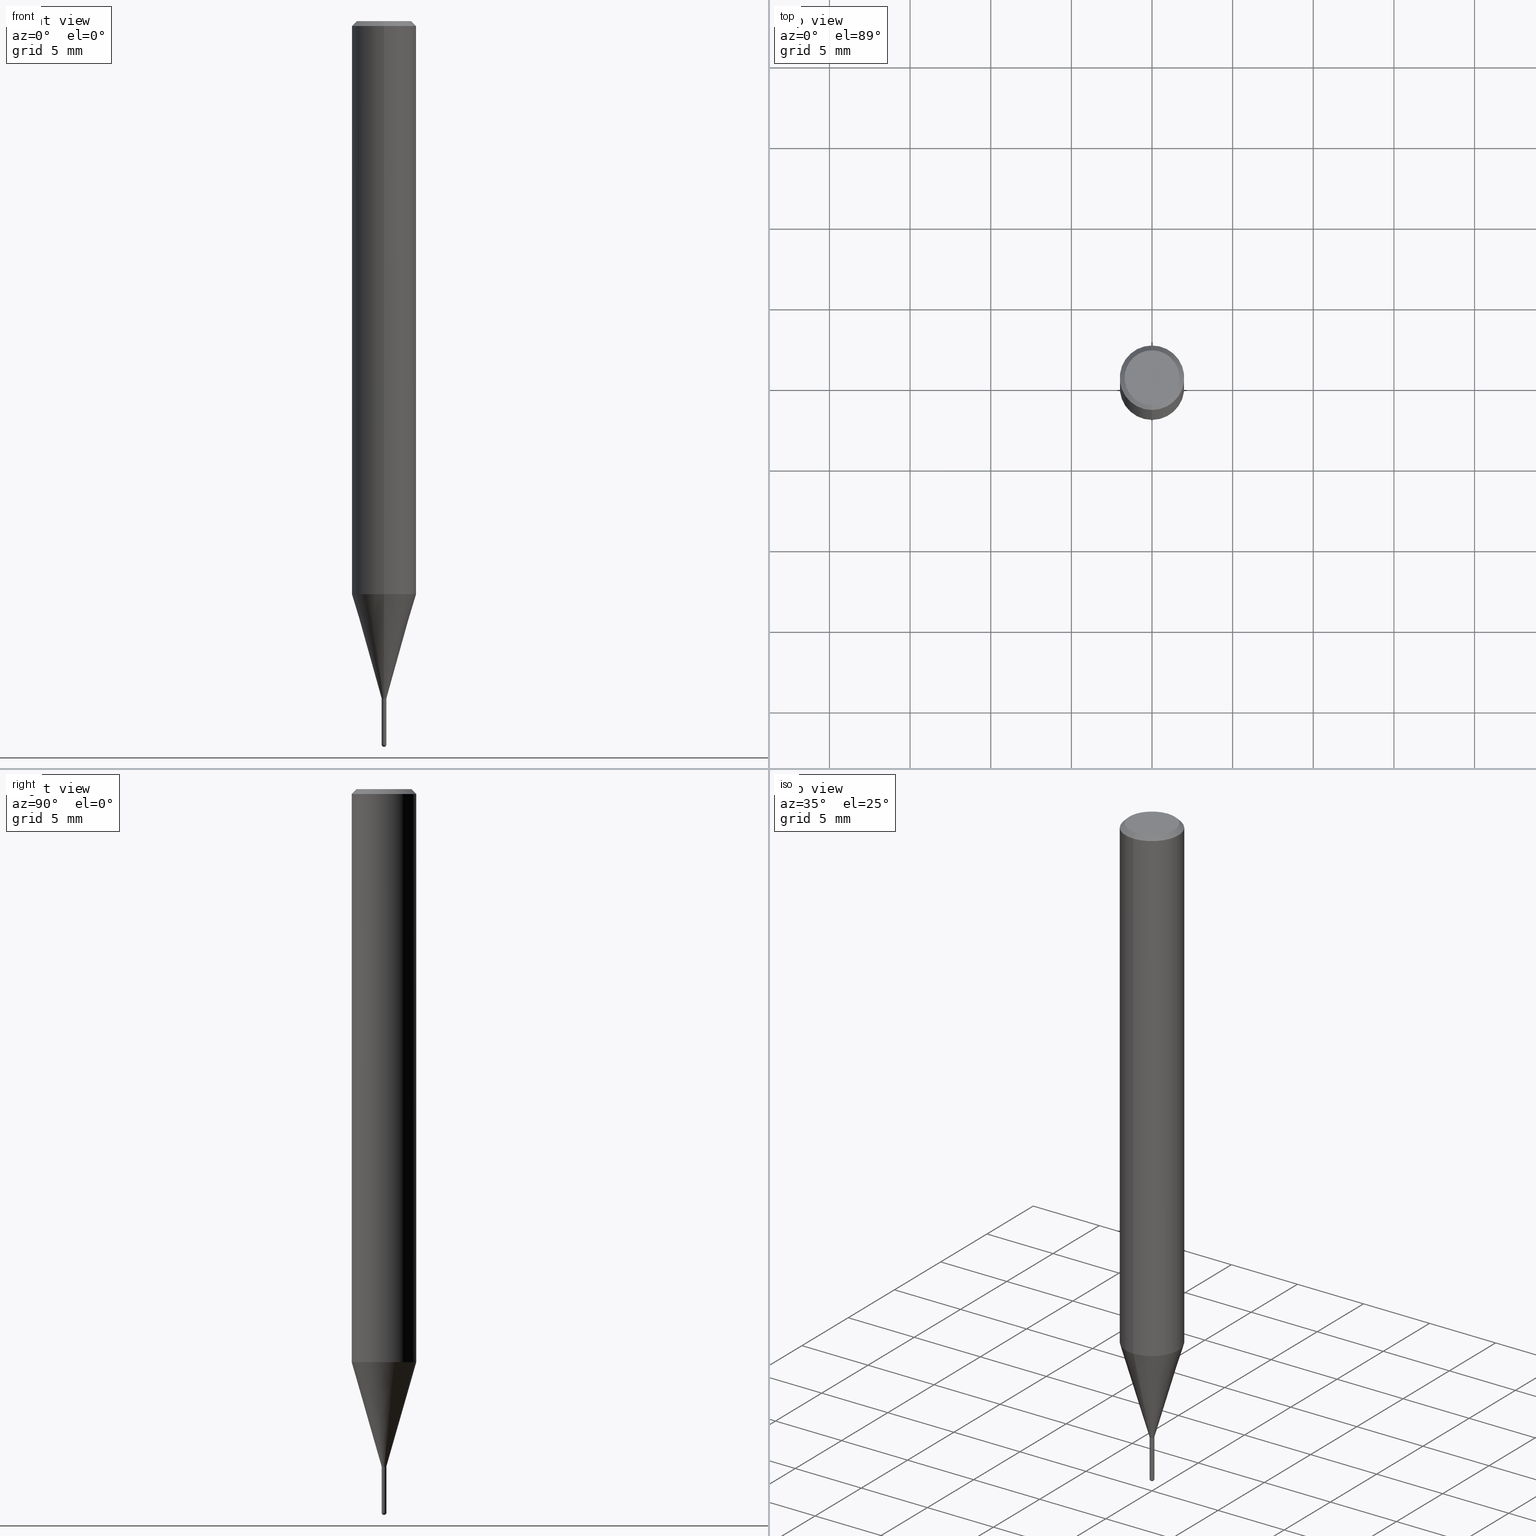
[diagram: canonical four-view strip — front | top / right | iso, engineering-drawing reading convention]
A machine part, canonical four-view strip (front | top / right | iso — engineering-drawing reading convention). The complete STEP part file that produces these views, byte-faithful:
ISO-10303-21;
HEADER;
FILE_DESCRIPTION(('no description'),'unknown implementation level');
FILE_NAME('HSLB2003-030-Huellk.stp','  ',('CIMSOURCE GmbH'),('CADClick - KiM GmbH - www.kimweb.de'),'unknown preprocess','ACIS','unknown authorization');
FILE_SCHEMA(('automotive_design'));
ENDSEC;
DATA;
#1=MECHANICAL_DESIGN_GEOMETRIC_PRESENTATION_REPRESENTATION(' ',(#14,#15,#16,#17,#18,#19,#20,#21,#22,#23,#24,#25,#26,#27,#28,#29,#30,#31,#32,#33,#34,#35,#36,#37,#38,#39,#40,#41,#42,#43,#44,#45,#46,#47,#48,#49,#50,#51,#52,#53,#54,#55,#56,#57,#58,#59,#60,#61,#62,#63,#64,#65,#66,#67,#68,#69,#70,#71,#72,#73,#74),#10);
#2=PRODUCT_DEFINITION_CONTEXT('',#75,'design');
#3=APPLICATION_PROTOCOL_DEFINITION('INTERNATIONAL STANDARD','automotive_design',1994,#75);
#4=PRODUCT_CATEGORY_RELATIONSHIP('NONE','NONE',#76,#77);
#5=SHAPE_DEFINITION_REPRESENTATION(#78,#79);
#6=PRODUCT_DEFINITION_CONTEXT('',#80,'design');
#7=APPLICATION_PROTOCOL_DEFINITION('INTERNATIONAL STANDARD','automotive_design',1994,#80);
#8=PRODUCT_CATEGORY_RELATIONSHIP('NONE','NONE',#81,#82);
#9=SHAPE_DEFINITION_REPRESENTATION(#83,#84);
#10= (GEOMETRIC_REPRESENTATION_CONTEXT(3)GLOBAL_UNCERTAINTY_ASSIGNED_CONTEXT((#87))GLOBAL_UNIT_ASSIGNED_CONTEXT((#89,#90,#91))REPRESENTATION_CONTEXT('NONE','WORKSPACE'));
#14=STYLED_ITEM('',(#93),#94);
#15=STYLED_ITEM('',(#95),#96);
#16=STYLED_ITEM('',(#97),#98);
#17=STYLED_ITEM('',(#99),#100);
#18=STYLED_ITEM('',(#101),#102);
#19=STYLED_ITEM('',(#103),#104);
#20=STYLED_ITEM('',(#105),#106);
#21=STYLED_ITEM('',(#107),#108);
#22=STYLED_ITEM('',(#109),#110);
#23=STYLED_ITEM('',(#111),#112);
#24=STYLED_ITEM('',(#113),#114);
#25=STYLED_ITEM('',(#115),#116);
#26=STYLED_ITEM('',(#117),#118);
#27=STYLED_ITEM('',(#119),#120);
#28=STYLED_ITEM('',(#121),#122);
#29=STYLED_ITEM('',(#123),#124);
#30=STYLED_ITEM('',(#125),#126);
#31=STYLED_ITEM('',(#127),#128);
#32=STYLED_ITEM('',(#129),#130);
#33=STYLED_ITEM('',(#131),#132);
#34=STYLED_ITEM('',(#133),#134);
#35=STYLED_ITEM('',(#135),#136);
#36=STYLED_ITEM('',(#137),#138);
#37=STYLED_ITEM('',(#139),#140);
#38=STYLED_ITEM('',(#141),#142);
#39=STYLED_ITEM('',(#143),#144);
#40=STYLED_ITEM('',(#145),#146);
#41=STYLED_ITEM('',(#147),#148);
#42=STYLED_ITEM('',(#149),#150);
#43=STYLED_ITEM('',(#151),#152);
#44=STYLED_ITEM('',(#153),#154);
#45=STYLED_ITEM('',(#155),#156);
#46=STYLED_ITEM('',(#157),#158);
#47=STYLED_ITEM('',(#159),#160);
#48=STYLED_ITEM('',(#161),#162);
#49=STYLED_ITEM('',(#163),#164);
#50=STYLED_ITEM('',(#165),#166);
#51=STYLED_ITEM('',(#167),#168);
#52=STYLED_ITEM('',(#169),#170);
#53=STYLED_ITEM('',(#171),#172);
#54=STYLED_ITEM('',(#173),#174);
#55=STYLED_ITEM('',(#175),#176);
#56=STYLED_ITEM('',(#177),#178);
#57=STYLED_ITEM('',(#179),#180);
#58=STYLED_ITEM('',(#181),#182);
#59=STYLED_ITEM('',(#183),#184);
#60=STYLED_ITEM('',(#185),#186);
#61=STYLED_ITEM('',(#187),#188);
#62=STYLED_ITEM('',(#189),#190);
#63=STYLED_ITEM('',(#191),#192);
#64=STYLED_ITEM('',(#193),#194);
#65=STYLED_ITEM('',(#195),#196);
#66=STYLED_ITEM('',(#197),#198);
#67=STYLED_ITEM('',(#199),#200);
#68=STYLED_ITEM('',(#201),#202);
#69=STYLED_ITEM('',(#203),#204);
#70=STYLED_ITEM('',(#205),#206);
#71=STYLED_ITEM('',(#207),#208);
#72=STYLED_ITEM('',(#209),#210);
#73=STYLED_ITEM('',(#211),#212);
#74=STYLED_ITEM('',(#213),#214);
#75=APPLICATION_CONTEXT(' ');
#76=PRODUCT_CATEGORY('part','NONE');
#77=PRODUCT_RELATED_PRODUCT_CATEGORY('detail',' ',(#215));
#78=PRODUCT_DEFINITION_SHAPE('NONE','NONE',#216);
#79=ADVANCED_BREP_SHAPE_REPRESENTATION('1',(#152,#217),#10);
#80=APPLICATION_CONTEXT(' ');
#81=PRODUCT_CATEGORY('part','NONE');
#82=PRODUCT_RELATED_PRODUCT_CATEGORY('detail',' ',(#218));
#83=PRODUCT_DEFINITION_SHAPE('NONE','NONE',#219);
#84=ADVANCED_BREP_SHAPE_REPRESENTATION('2',(#166,#220),#10);
#87=UNCERTAINTY_MEASURE_WITH_UNIT(LENGTH_MEASURE(1.0E-006),#89,'','');
#89= (CONVERSION_BASED_UNIT('MILLIMETRE',#223)LENGTH_UNIT()NAMED_UNIT(#226));
#90= (NAMED_UNIT(#228)PLANE_ANGLE_UNIT()SI_UNIT($,.RADIAN.));
#91= (NAMED_UNIT(#228)SOLID_ANGLE_UNIT()SI_UNIT($,.STERADIAN.));
#93=PRESENTATION_STYLE_ASSIGNMENT((#234));
#94=ADVANCED_FACE('',(#235),#236,.T.);
#95=PRESENTATION_STYLE_ASSIGNMENT((#237));
#96=ADVANCED_FACE('',(#238),#239,.T.);
#97=PRESENTATION_STYLE_ASSIGNMENT((#240));
#98=EDGE_CURVE('',#182,#186,#241,.T.);
#99=PRESENTATION_STYLE_ASSIGNMENT((#242));
#100=ADVANCED_FACE('',(#243),#244,.T.);
#101=PRESENTATION_STYLE_ASSIGNMENT((#245));
#102=VERTEX_POINT('',#246);
#103=PRESENTATION_STYLE_ASSIGNMENT((#247));
#104=ADVANCED_FACE('',(#248),#249,.T.);
#105=PRESENTATION_STYLE_ASSIGNMENT((#250));
#106=VERTEX_POINT('',#251);
#107=PRESENTATION_STYLE_ASSIGNMENT((#252));
#108=EDGE_CURVE('',#204,#130,#253,.T.);
#109=PRESENTATION_STYLE_ASSIGNMENT((#254));
#110=EDGE_CURVE('',#196,#136,#255,.T.);
#111=PRESENTATION_STYLE_ASSIGNMENT((#256));
#112=ADVANCED_FACE('',(#257,#258),#259,.T.);
#113=PRESENTATION_STYLE_ASSIGNMENT((#260));
#114=VERTEX_POINT('',#261);
#115=PRESENTATION_STYLE_ASSIGNMENT((#262));
#116=EDGE_CURVE('',#182,#170,#263,.T.);
#117=PRESENTATION_STYLE_ASSIGNMENT((#264));
#118=VERTEX_POINT('',#265);
#119=PRESENTATION_STYLE_ASSIGNMENT((#266));
#120=VERTEX_POINT('',#267);
#121=PRESENTATION_STYLE_ASSIGNMENT((#268));
#122=EDGE_CURVE('',#118,#196,#269,.T.);
#123=PRESENTATION_STYLE_ASSIGNMENT((#270));
#124=EDGE_CURVE('',#114,#186,#271,.T.);
#125=PRESENTATION_STYLE_ASSIGNMENT((#272));
#126=EDGE_CURVE('',#106,#120,#273,.T.);
#127=PRESENTATION_STYLE_ASSIGNMENT((#274));
#128=EDGE_CURVE('',#120,#102,#275,.T.);
#129=PRESENTATION_STYLE_ASSIGNMENT((#276));
#130=VERTEX_POINT('',#277);
#131=PRESENTATION_STYLE_ASSIGNMENT((#278));
#132=EDGE_CURVE('',#130,#204,#279,.T.);
#133=PRESENTATION_STYLE_ASSIGNMENT((#280));
#134=ADVANCED_FACE('',(#281),#282,.T.);
#135=PRESENTATION_STYLE_ASSIGNMENT((#283));
#136=VERTEX_POINT('',#284);
#137=PRESENTATION_STYLE_ASSIGNMENT((#285));
#138=EDGE_CURVE('',#208,#102,#286,.T.);
#139=PRESENTATION_STYLE_ASSIGNMENT((#287));
#140=EDGE_CURVE('',#120,#106,#288,.T.);
#141=PRESENTATION_STYLE_ASSIGNMENT((#289));
#142=VERTEX_POINT('',#290);
#143=PRESENTATION_STYLE_ASSIGNMENT((#291));
#144=VERTEX_POINT('',#292);
#145=PRESENTATION_STYLE_ASSIGNMENT((#293));
#146=ADVANCED_FACE('',(#294),#295,.T.);
#147=PRESENTATION_STYLE_ASSIGNMENT((#296));
#148=EDGE_CURVE('',#208,#106,#297,.T.);
#149=PRESENTATION_STYLE_ASSIGNMENT((#298));
#150=EDGE_CURVE('',#142,#178,#299,.T.);
#151=PRESENTATION_STYLE_ASSIGNMENT((#300));
#152=MANIFOLD_SOLID_BREP('1',#301);
#153=PRESENTATION_STYLE_ASSIGNMENT((#302));
#154=EDGE_CURVE('',#144,#136,#303,.T.);
#155=PRESENTATION_STYLE_ASSIGNMENT((#304));
#156=ADVANCED_FACE('',(#305),#306,.T.);
#157=PRESENTATION_STYLE_ASSIGNMENT((#307));
#158=ADVANCED_FACE('',(#308),#309,.T.);
#159=PRESENTATION_STYLE_ASSIGNMENT((#310));
#160=ADVANCED_FACE('',(#311),#312,.T.);
#161=PRESENTATION_STYLE_ASSIGNMENT((#313));
#162=ADVANCED_FACE('',(#314),#315,.T.);
#163=PRESENTATION_STYLE_ASSIGNMENT((#316));
#164=EDGE_CURVE('',#186,#182,#317,.T.);
#165=PRESENTATION_STYLE_ASSIGNMENT((#318));
#166=MANIFOLD_SOLID_BREP('2',#319);
#167=PRESENTATION_STYLE_ASSIGNMENT((#320));
#168=EDGE_CURVE('',#144,#118,#321,.T.);
#169=PRESENTATION_STYLE_ASSIGNMENT((#322));
#170=VERTEX_POINT('',#323);
#171=PRESENTATION_STYLE_ASSIGNMENT((#324));
#172=EDGE_CURVE('',#114,#170,#325,.T.);
#173=PRESENTATION_STYLE_ASSIGNMENT((#326));
#174=ADVANCED_FACE('',(#327),#328,.T.);
#175=PRESENTATION_STYLE_ASSIGNMENT((#329));
#176=EDGE_CURVE('',#142,#120,#330,.T.);
#177=PRESENTATION_STYLE_ASSIGNMENT((#331));
#178=VERTEX_POINT('',#332);
#179=PRESENTATION_STYLE_ASSIGNMENT((#333));
#180=EDGE_CURVE('',#186,#130,#334,.T.);
#181=PRESENTATION_STYLE_ASSIGNMENT((#335));
#182=VERTEX_POINT('',#336);
#183=PRESENTATION_STYLE_ASSIGNMENT((#337));
#184=EDGE_CURVE('',#178,#142,#338,.T.);
#185=PRESENTATION_STYLE_ASSIGNMENT((#339));
#186=VERTEX_POINT('',#340);
#187=PRESENTATION_STYLE_ASSIGNMENT((#341));
#188=EDGE_CURVE('',#196,#118,#342,.T.);
#189=PRESENTATION_STYLE_ASSIGNMENT((#343));
#190=EDGE_CURVE('',#106,#178,#344,.T.);
#191=PRESENTATION_STYLE_ASSIGNMENT((#345));
#192=EDGE_CURVE('',#144,#136,#346,.T.);
#193=PRESENTATION_STYLE_ASSIGNMENT((#347));
#194=ADVANCED_FACE('',(#348),#349,.T.);
#195=PRESENTATION_STYLE_ASSIGNMENT((#350));
#196=VERTEX_POINT('',#351);
#197=PRESENTATION_STYLE_ASSIGNMENT((#352));
#198=EDGE_CURVE('',#204,#182,#353,.T.);
#199=PRESENTATION_STYLE_ASSIGNMENT((#354));
#200=EDGE_CURVE('',#170,#114,#355,.T.);
#201=PRESENTATION_STYLE_ASSIGNMENT((#356));
#202=ADVANCED_FACE('',(#357),#358,.T.);
#203=PRESENTATION_STYLE_ASSIGNMENT((#359));
#204=VERTEX_POINT('',#360);
#205=PRESENTATION_STYLE_ASSIGNMENT((#361));
#206=EDGE_CURVE('',#102,#208,#362,.T.);
#207=PRESENTATION_STYLE_ASSIGNMENT((#363));
#208=VERTEX_POINT('',#364);
#209=PRESENTATION_STYLE_ASSIGNMENT((#365));
#210=EDGE_CURVE('',#136,#144,#366,.T.);
#211=PRESENTATION_STYLE_ASSIGNMENT((#367));
#212=ADVANCED_FACE('',(#368),#369,.T.);
#213=PRESENTATION_STYLE_ASSIGNMENT((#370));
#214=ADVANCED_FACE('',(#371),#372,.T.);
#215=PRODUCT('1','1','PART-1-DESC',(#373));
#216=PRODUCT_DEFINITION('NONE','NONE',#374,#2);
#217=AXIS2_PLACEMENT_3D('',#375,#376,#377);
#218=PRODUCT('2','2','PART-2-DESC',(#378));
#219=PRODUCT_DEFINITION('NONE','NONE',#379,#6);
#220=AXIS2_PLACEMENT_3D('',#380,#381,#382);
#223=LENGTH_MEASURE_WITH_UNIT(LENGTH_MEASURE(1.0),#383);
#226=DIMENSIONAL_EXPONENTS(1.0,0.0,0.0,0.0,0.0,0.0,0.0);
#228=DIMENSIONAL_EXPONENTS(0.0,0.0,0.0,0.0,0.0,0.0,0.0);
#234=SURFACE_STYLE_USAGE(.BOTH.,#384);
#235=FACE_OUTER_BOUND('',#385,.T.);
#236=PLANE('',#386);
#237=SURFACE_STYLE_USAGE(.BOTH.,#387);
#238=FACE_OUTER_BOUND('',#388,.T.);
#239=CYLINDRICAL_SURFACE('',#389,2.0);
#240=CURVE_STYLE('',#390,POSITIVE_LENGTH_MEASURE(1.0E-006),#391);
#241=CIRCLE('',#392,0.14495);
#242=SURFACE_STYLE_USAGE(.BOTH.,#393);
#243=FACE_OUTER_BOUND('',#394,.T.);
#244=CONICAL_SURFACE('',#395,0.14995,0.00111111065386396);
#245=POINT_STYLE(' ',#396,POSITIVE_LENGTH_MEASURE(1.0E-006),#397);
#246=CARTESIAN_POINT('',(2.08183080149804E-016,-1.7,0.0));
#247=SURFACE_STYLE_USAGE(.BOTH.,#398);
#248=FACE_OUTER_BOUND('',#399,.T.);
#249=CONICAL_SURFACE('',#400,1.07245,0.279258979430112);
#250=POINT_STYLE(' ',#401,POSITIVE_LENGTH_MEASURE(1.0E-006),#402);
#251=CARTESIAN_POINT('',(0.0,2.0,-0.299999999999997));
#252=CURVE_STYLE('',#403,POSITIVE_LENGTH_MEASURE(1.0E-006),#404);
#253=CIRCLE('',#405,1.99995);
#254=CURVE_STYLE('',#406,POSITIVE_LENGTH_MEASURE(1.0E-006),#407);
#255=LINE('',#408,#409);
#256=SURFACE_STYLE_USAGE(.BOTH.,#410);
#257=FACE_OUTER_BOUND('',#411,.T.);
#258=FACE_BOUND('',#412,.T.);
#259=PLANE('',#413);
#260=POINT_STYLE(' ',#414,POSITIVE_LENGTH_MEASURE(1.0E-006),#415);
#261=CARTESIAN_POINT('',(1.77506690986554E-017,-0.14495,-44.76));
#262=CURVE_STYLE('',#416,POSITIVE_LENGTH_MEASURE(1.0E-006),#417);
#263=LINE('',#418,#419);
#264=POINT_STYLE(' ',#420,POSITIVE_LENGTH_MEASURE(1.0E-006),#421);
#265=CARTESIAN_POINT('',(1.83568492437974E-017,-0.1499,-44.76));
#266=POINT_STYLE(' ',#422,POSITIVE_LENGTH_MEASURE(1.0E-006),#423);
#267=CARTESIAN_POINT('',(2.44921270764475E-016,-2.0,-0.299999999999997));
#268=CURVE_STYLE('',#424,POSITIVE_LENGTH_MEASURE(1.0E-006),#425);
#269=CIRCLE('',#426,0.1499);
#270=CURVE_STYLE('',#427,POSITIVE_LENGTH_MEASURE(1.0E-006),#428);
#271=LINE('',#429,#430);
#272=CURVE_STYLE('',#431,POSITIVE_LENGTH_MEASURE(1.0E-006),#432);
#273=CIRCLE('',#433,2.0);
#274=CURVE_STYLE('',#434,POSITIVE_LENGTH_MEASURE(1.0E-006),#435);
#275=LINE('',#436,#437);
#276=POINT_STYLE(' ',#438,POSITIVE_LENGTH_MEASURE(1.0E-006),#439);
#277=CARTESIAN_POINT('',(2.44915147732706E-016,-1.99995,-35.531));
#278=CURVE_STYLE('',#440,POSITIVE_LENGTH_MEASURE(1.0E-006),#441);
#279=CIRCLE('',#442,1.99995);
#280=SURFACE_STYLE_USAGE(.BOTH.,#443);
#281=FACE_OUTER_BOUND('',#444,.T.);
#282=CONICAL_SURFACE('',#445,1.85,0.785398163397453);
#283=POINT_STYLE(' ',#446,POSITIVE_LENGTH_MEASURE(1.0E-006),#447);
#284=CARTESIAN_POINT('',(0.0,0.15,-44.85));
#285=CURVE_STYLE('',#448,POSITIVE_LENGTH_MEASURE(1.0E-006),#449);
#286=CIRCLE('',#450,1.7);
#287=CURVE_STYLE('',#451,POSITIVE_LENGTH_MEASURE(1.0E-006),#452);
#288=CIRCLE('',#453,2.0);
#289=POINT_STYLE(' ',#454,POSITIVE_LENGTH_MEASURE(1.0E-006),#455);
#290=CARTESIAN_POINT('',(2.44921270764475E-016,-2.0,-35.531));
#291=POINT_STYLE(' ',#456,POSITIVE_LENGTH_MEASURE(1.0E-006),#457);
#292=CARTESIAN_POINT('',(1.83690953073356E-017,-0.15,-44.85));
#293=SURFACE_STYLE_USAGE(.BOTH.,#458);
#294=FACE_OUTER_BOUND('',#459,.T.);
#295=CYLINDRICAL_SURFACE('',#460,0.14495);
#296=CURVE_STYLE('',#461,POSITIVE_LENGTH_MEASURE(1.0E-006),#462);
#297=LINE('',#463,#464);
#298=CURVE_STYLE('',#465,POSITIVE_LENGTH_MEASURE(1.0E-006),#466);
#299=CIRCLE('',#467,2.0);
#300=SURFACE_STYLE_USAGE(.BOTH.,#468);
#301=CLOSED_SHELL('',(#202,#160,#194,#134,#112,#212,#158,#96,#104,#146,#94));
#302=CURVE_STYLE('',#469,POSITIVE_LENGTH_MEASURE(1.0E-006),#470);
#303=CIRCLE('',#471,0.15);
#304=SURFACE_STYLE_USAGE(.BOTH.,#472);
#305=FACE_OUTER_BOUND('',#473,.T.);
#306=PLANE('',#474);
#307=SURFACE_STYLE_USAGE(.BOTH.,#475);
#308=FACE_OUTER_BOUND('',#476,.T.);
#309=CONICAL_SURFACE('',#477,1.85,0.785398163397453);
#310=SURFACE_STYLE_USAGE(.BOTH.,#478);
#311=FACE_OUTER_BOUND('',#479,.T.);
#312=CONICAL_SURFACE('',#480,1.07245,0.279258979430112);
#313=SURFACE_STYLE_USAGE(.BOTH.,#481);
#314=FACE_OUTER_BOUND('',#482,.T.);
#315=SPHERICAL_SURFACE('',#483,0.15);
#316=CURVE_STYLE('',#484,POSITIVE_LENGTH_MEASURE(1.0E-006),#485);
#317=CIRCLE('',#486,0.14495);
#318=SURFACE_STYLE_USAGE(.BOTH.,#487);
#319=CLOSED_SHELL('',(#214,#100,#156,#174,#162));
#320=CURVE_STYLE('',#488,POSITIVE_LENGTH_MEASURE(1.0E-006),#489);
#321=LINE('',#490,#491);
#322=POINT_STYLE(' ',#492,POSITIVE_LENGTH_MEASURE(1.0E-006),#493);
#323=CARTESIAN_POINT('',(0.0,0.14495,-44.76));
#324=CURVE_STYLE('',#494,POSITIVE_LENGTH_MEASURE(1.0E-006),#495);
#325=CIRCLE('',#496,0.14495);
#326=SURFACE_STYLE_USAGE(.BOTH.,#497);
#327=FACE_OUTER_BOUND('',#498,.T.);
#328=CONICAL_SURFACE('',#499,0.14995,0.00111111065386396);
#329=CURVE_STYLE('',#500,POSITIVE_LENGTH_MEASURE(1.0E-006),#501);
#330=LINE('',#502,#503);
#331=POINT_STYLE(' ',#504,POSITIVE_LENGTH_MEASURE(1.0E-006),#505);
#332=CARTESIAN_POINT('',(0.0,2.0,-35.531));
#333=CURVE_STYLE('',#506,POSITIVE_LENGTH_MEASURE(1.0E-006),#507);
#334=LINE('',#508,#509);
#335=POINT_STYLE(' ',#510,POSITIVE_LENGTH_MEASURE(1.0E-006),#511);
#336=CARTESIAN_POINT('',(0.0,0.14495,-42.0));
#337=CURVE_STYLE('',#512,POSITIVE_LENGTH_MEASURE(1.0E-006),#513);
#338=CIRCLE('',#514,2.0);
#339=POINT_STYLE(' ',#515,POSITIVE_LENGTH_MEASURE(1.0E-006),#516);
#340=CARTESIAN_POINT('',(1.77506690986554E-017,-0.14495,-42.0));
#341=CURVE_STYLE('',#517,POSITIVE_LENGTH_MEASURE(1.0E-006),#518);
#342=CIRCLE('',#519,0.1499);
#343=CURVE_STYLE('',#520,POSITIVE_LENGTH_MEASURE(1.0E-006),#521);
#344=LINE('',#522,#523);
#345=CURVE_STYLE('',#524,POSITIVE_LENGTH_MEASURE(1.0E-006),#525);
#346=CIRCLE('',#526,0.15);
#347=SURFACE_STYLE_USAGE(.BOTH.,#527);
#348=FACE_OUTER_BOUND('',#528,.T.);
#349=CYLINDRICAL_SURFACE('',#529,2.0);
#350=POINT_STYLE(' ',#530,POSITIVE_LENGTH_MEASURE(1.0E-006),#531);
#351=CARTESIAN_POINT('',(0.0,0.1499,-44.76));
#352=CURVE_STYLE('',#532,POSITIVE_LENGTH_MEASURE(1.0E-006),#533);
#353=LINE('',#534,#535);
#354=CURVE_STYLE('',#536,POSITIVE_LENGTH_MEASURE(1.0E-006),#537);
#355=CIRCLE('',#538,0.14495);
#356=SURFACE_STYLE_USAGE(.BOTH.,#539);
#357=FACE_OUTER_BOUND('',#540,.T.);
#358=CYLINDRICAL_SURFACE('',#541,0.14495);
#359=POINT_STYLE(' ',#542,POSITIVE_LENGTH_MEASURE(1.0E-006),#543);
#360=CARTESIAN_POINT('',(0.0,1.99995,-35.531));
#361=CURVE_STYLE('',#544,POSITIVE_LENGTH_MEASURE(1.0E-006),#545);
#362=CIRCLE('',#546,1.7);
#363=POINT_STYLE(' ',#547,POSITIVE_LENGTH_MEASURE(1.0E-006),#548);
#364=CARTESIAN_POINT('',(0.0,1.7,0.0));
#365=CURVE_STYLE('',#549,POSITIVE_LENGTH_MEASURE(1.0E-006),#550);
#366=CIRCLE('',#551,0.15);
#367=SURFACE_STYLE_USAGE(.BOTH.,#552);
#368=FACE_OUTER_BOUND('',#553,.T.);
#369=PLANE('',#554);
#370=SURFACE_STYLE_USAGE(.BOTH.,#555);
#371=FACE_OUTER_BOUND('',#556,.T.);
#372=SPHERICAL_SURFACE('',#557,0.15);
#373=PRODUCT_CONTEXT('',#75,'mechanical');
#374=PRODUCT_DEFINITION_FORMATION_WITH_SPECIFIED_SOURCE(' ','NONE',#215,.NOT_KNOWN.);
#375=CARTESIAN_POINT('',(0.0,0.0,0.0));
#376=DIRECTION('',(0.0,0.0,1.0));
#377=DIRECTION('',(1.0,0.0,0.0));
#378=PRODUCT_CONTEXT('',#80,'mechanical');
#379=PRODUCT_DEFINITION_FORMATION_WITH_SPECIFIED_SOURCE(' ','NONE',#218,.NOT_KNOWN.);
#380=CARTESIAN_POINT('',(0.0,0.0,0.0));
#381=DIRECTION('',(0.0,0.0,1.0));
#382=DIRECTION('',(1.0,0.0,0.0));
#383= (NAMED_UNIT(#226)LENGTH_UNIT()SI_UNIT(.MILLI.,.METRE.));
#384=SURFACE_SIDE_STYLE('',(#559));
#385=EDGE_LOOP('',(#560,#561));
#386=AXIS2_PLACEMENT_3D('',#562,#563,#564);
#387=SURFACE_SIDE_STYLE('',(#565));
#388=EDGE_LOOP('',(#566,#567,#568,#569));
#389=AXIS2_PLACEMENT_3D('',#570,#571,#572);
#390=DRAUGHTING_PRE_DEFINED_CURVE_FONT('continuous');
#391=COLOUR_RGB('',0.498039215803146,0.498039215803146,0.498039215803146);
#392=AXIS2_PLACEMENT_3D('',#573,#574,#575);
#393=SURFACE_SIDE_STYLE('',(#576));
#394=EDGE_LOOP('',(#577,#578,#579,#580));
#395=AXIS2_PLACEMENT_3D('',#581,#582,#583);
#396=PRE_DEFINED_MARKER('');
#397=COLOUR_RGB('',0.498039215803146,0.498039215803146,0.498039215803146);
#398=SURFACE_SIDE_STYLE('',(#584));
#399=EDGE_LOOP('',(#585,#586,#587,#588));
#400=AXIS2_PLACEMENT_3D('',#589,#590,#591);
#401=PRE_DEFINED_MARKER('');
#402=COLOUR_RGB('',0.498039215803146,0.498039215803146,0.498039215803146);
#403=DRAUGHTING_PRE_DEFINED_CURVE_FONT('continuous');
#404=COLOUR_RGB('',0.498039215803146,0.498039215803146,0.498039215803146);
#405=AXIS2_PLACEMENT_3D('',#592,#593,#594);
#406=DRAUGHTING_PRE_DEFINED_CURVE_FONT('continuous');
#407=COLOUR_RGB('',0.800000011920929,0.800000011920929,0.800000011920929);
#408=CARTESIAN_POINT('',(-1.83629722755665E-017,0.14995,-44.805));
#409=VECTOR('',#595,1.0);
#410=SURFACE_SIDE_STYLE('',(#596));
#411=EDGE_LOOP('',(#597,#598));
#412=EDGE_LOOP('',(#599,#600));
#413=AXIS2_PLACEMENT_3D('',#601,#602,#603);
#414=PRE_DEFINED_MARKER('');
#415=COLOUR_RGB('',0.498039215803146,0.498039215803146,0.498039215803146);
#416=DRAUGHTING_PRE_DEFINED_CURVE_FONT('continuous');
#417=COLOUR_RGB('',0.498039215803146,0.498039215803146,0.498039215803146);
#418=CARTESIAN_POINT('',(-1.77506690986554E-017,0.14495,-43.38));
#419=VECTOR('',#604,1.0);
#420=PRE_DEFINED_MARKER('');
#421=COLOUR_RGB('',0.800000011920929,0.800000011920929,0.800000011920929);
#422=PRE_DEFINED_MARKER('');
#423=COLOUR_RGB('',0.498039215803146,0.498039215803146,0.498039215803146);
#424=DRAUGHTING_PRE_DEFINED_CURVE_FONT('continuous');
#425=COLOUR_RGB('',0.800000011920929,0.800000011920929,0.800000011920929);
#426=AXIS2_PLACEMENT_3D('',#605,#606,#607);
#427=DRAUGHTING_PRE_DEFINED_CURVE_FONT('continuous');
#428=COLOUR_RGB('',0.498039215803146,0.498039215803146,0.498039215803146);
#429=CARTESIAN_POINT('',(1.77506690986554E-017,-0.14495,-43.38));
#430=VECTOR('',#608,1.0);
#431=DRAUGHTING_PRE_DEFINED_CURVE_FONT('continuous');
#432=COLOUR_RGB('',0.498039215803146,0.498039215803146,0.498039215803146);
#433=AXIS2_PLACEMENT_3D('',#609,#610,#611);
#434=DRAUGHTING_PRE_DEFINED_CURVE_FONT('continuous');
#435=COLOUR_RGB('',0.498039215803146,0.498039215803146,0.498039215803146);
#436=CARTESIAN_POINT('',(2.2655217545714E-016,-1.85,-0.149999999999999));
#437=VECTOR('',#612,1.0);
#438=PRE_DEFINED_MARKER('');
#439=COLOUR_RGB('',0.498039215803146,0.498039215803146,0.498039215803146);
#440=DRAUGHTING_PRE_DEFINED_CURVE_FONT('continuous');
#441=COLOUR_RGB('',0.498039215803146,0.498039215803146,0.498039215803146);
#442=AXIS2_PLACEMENT_3D('',#613,#614,#615);
#443=SURFACE_SIDE_STYLE('',(#616));
#444=EDGE_LOOP('',(#617,#618,#619,#620));
#445=AXIS2_PLACEMENT_3D('',#621,#622,#623);
#446=PRE_DEFINED_MARKER('');
#447=COLOUR_RGB('',0.800000011920929,0.800000011920929,0.800000011920929);
#448=DRAUGHTING_PRE_DEFINED_CURVE_FONT('continuous');
#449=COLOUR_RGB('',0.498039215803146,0.498039215803146,0.498039215803146);
#450=AXIS2_PLACEMENT_3D('',#624,#625,#626);
#451=DRAUGHTING_PRE_DEFINED_CURVE_FONT('continuous');
#452=COLOUR_RGB('',0.498039215803146,0.498039215803146,0.498039215803146);
#453=AXIS2_PLACEMENT_3D('',#627,#628,#629);
#454=PRE_DEFINED_MARKER('');
#455=COLOUR_RGB('',0.498039215803146,0.498039215803146,0.498039215803146);
#456=PRE_DEFINED_MARKER('');
#457=COLOUR_RGB('',0.800000011920929,0.800000011920929,0.800000011920929);
#458=SURFACE_SIDE_STYLE('',(#630));
#459=EDGE_LOOP('',(#631,#632,#633,#634));
#460=AXIS2_PLACEMENT_3D('',#635,#636,#637);
#461=DRAUGHTING_PRE_DEFINED_CURVE_FONT('continuous');
#462=COLOUR_RGB('',0.498039215803146,0.498039215803146,0.498039215803146);
#463=CARTESIAN_POINT('',(-2.2655217545714E-016,1.85,-0.149999999999999));
#464=VECTOR('',#638,1.0);
#465=DRAUGHTING_PRE_DEFINED_CURVE_FONT('continuous');
#466=COLOUR_RGB('',0.498039215803146,0.498039215803146,0.498039215803146);
#467=AXIS2_PLACEMENT_3D('',#639,#640,#641);
#468=SURFACE_SIDE_STYLE('',(#642));
#469=DRAUGHTING_PRE_DEFINED_CURVE_FONT('continuous');
#470=COLOUR_RGB('',0.800000011920929,0.800000011920929,0.800000011920929);
#471=AXIS2_PLACEMENT_3D('',#643,#644,#645);
#472=SURFACE_SIDE_STYLE('',(#646));
#473=EDGE_LOOP('',(#647,#648));
#474=AXIS2_PLACEMENT_3D('',#649,#650,#651);
#475=SURFACE_SIDE_STYLE('',(#652));
#476=EDGE_LOOP('',(#653,#654,#655,#656));
#477=AXIS2_PLACEMENT_3D('',#657,#658,#659);
#478=SURFACE_SIDE_STYLE('',(#660));
#479=EDGE_LOOP('',(#661,#662,#663,#664));
#480=AXIS2_PLACEMENT_3D('',#665,#666,#667);
#481=SURFACE_SIDE_STYLE('',(#668));
#482=EDGE_LOOP('',(#669,#670));
#483=AXIS2_PLACEMENT_3D('',#671,#672,#673);
#484=DRAUGHTING_PRE_DEFINED_CURVE_FONT('continuous');
#485=COLOUR_RGB('',0.498039215803146,0.498039215803146,0.498039215803146);
#486=AXIS2_PLACEMENT_3D('',#674,#675,#676);
#487=SURFACE_SIDE_STYLE('',(#677));
#488=DRAUGHTING_PRE_DEFINED_CURVE_FONT('continuous');
#489=COLOUR_RGB('',0.800000011920929,0.800000011920929,0.800000011920929);
#490=CARTESIAN_POINT('',(1.83629722755665E-017,-0.14995,-44.805));
#491=VECTOR('',#678,1.0);
#492=PRE_DEFINED_MARKER('');
#493=COLOUR_RGB('',0.498039215803146,0.498039215803146,0.498039215803146);
#494=DRAUGHTING_PRE_DEFINED_CURVE_FONT('continuous');
#495=COLOUR_RGB('',0.498039215803146,0.498039215803146,0.498039215803146);
#496=AXIS2_PLACEMENT_3D('',#679,#680,#681);
#497=SURFACE_SIDE_STYLE('',(#682));
#498=EDGE_LOOP('',(#683,#684,#685,#686));
#499=AXIS2_PLACEMENT_3D('',#687,#688,#689);
#500=DRAUGHTING_PRE_DEFINED_CURVE_FONT('continuous');
#501=COLOUR_RGB('',0.498039215803146,0.498039215803146,0.498039215803146);
#502=CARTESIAN_POINT('',(2.44921270764475E-016,-2.0,-17.9155));
#503=VECTOR('',#690,1.0);
#504=PRE_DEFINED_MARKER('');
#505=COLOUR_RGB('',0.498039215803146,0.498039215803146,0.498039215803146);
#506=DRAUGHTING_PRE_DEFINED_CURVE_FONT('continuous');
#507=COLOUR_RGB('',0.498039215803146,0.498039215803146,0.498039215803146);
#508=CARTESIAN_POINT('',(1.31332908415681E-016,-1.07245,-38.7655));
#509=VECTOR('',#691,1.0);
#510=PRE_DEFINED_MARKER('');
#511=COLOUR_RGB('',0.498039215803146,0.498039215803146,0.498039215803146);
#512=DRAUGHTING_PRE_DEFINED_CURVE_FONT('continuous');
#513=COLOUR_RGB('',0.498039215803146,0.498039215803146,0.498039215803146);
#514=AXIS2_PLACEMENT_3D('',#692,#693,#694);
#515=PRE_DEFINED_MARKER('');
#516=COLOUR_RGB('',0.498039215803146,0.498039215803146,0.498039215803146);
#517=DRAUGHTING_PRE_DEFINED_CURVE_FONT('continuous');
#518=COLOUR_RGB('',0.800000011920929,0.800000011920929,0.800000011920929);
#519=AXIS2_PLACEMENT_3D('',#695,#696,#697);
#520=DRAUGHTING_PRE_DEFINED_CURVE_FONT('continuous');
#521=COLOUR_RGB('',0.498039215803146,0.498039215803146,0.498039215803146);
#522=CARTESIAN_POINT('',(-2.44921270764475E-016,2.0,-17.9155));
#523=VECTOR('',#698,1.0);
#524=DRAUGHTING_PRE_DEFINED_CURVE_FONT('continuous');
#525=COLOUR_RGB('',0.800000011920929,0.800000011920929,0.800000011920929);
#526=AXIS2_PLACEMENT_3D('',#699,#700,#701);
#527=SURFACE_SIDE_STYLE('',(#702));
#528=EDGE_LOOP('',(#703,#704,#705,#706));
#529=AXIS2_PLACEMENT_3D('',#707,#708,#709);
#530=PRE_DEFINED_MARKER('');
#531=COLOUR_RGB('',0.800000011920929,0.800000011920929,0.800000011920929);
#532=DRAUGHTING_PRE_DEFINED_CURVE_FONT('continuous');
#533=COLOUR_RGB('',0.498039215803146,0.498039215803146,0.498039215803146);
#534=CARTESIAN_POINT('',(-1.31332908415681E-016,1.07245,-38.7655));
#535=VECTOR('',#710,1.0);
#536=DRAUGHTING_PRE_DEFINED_CURVE_FONT('continuous');
#537=COLOUR_RGB('',0.498039215803146,0.498039215803146,0.498039215803146);
#538=AXIS2_PLACEMENT_3D('',#711,#712,#713);
#539=SURFACE_SIDE_STYLE('',(#714));
#540=EDGE_LOOP('',(#715,#716,#717,#718));
#541=AXIS2_PLACEMENT_3D('',#719,#720,#721);
#542=PRE_DEFINED_MARKER('');
#543=COLOUR_RGB('',0.498039215803146,0.498039215803146,0.498039215803146);
#544=DRAUGHTING_PRE_DEFINED_CURVE_FONT('continuous');
#545=COLOUR_RGB('',0.498039215803146,0.498039215803146,0.498039215803146);
#546=AXIS2_PLACEMENT_3D('',#722,#723,#724);
#547=PRE_DEFINED_MARKER('');
#548=COLOUR_RGB('',0.498039215803146,0.498039215803146,0.498039215803146);
#549=DRAUGHTING_PRE_DEFINED_CURVE_FONT('continuous');
#550=COLOUR_RGB('',0.800000011920929,0.800000011920929,0.800000011920929);
#551=AXIS2_PLACEMENT_3D('',#725,#726,#727);
#552=SURFACE_SIDE_STYLE('',(#728));
#553=EDGE_LOOP('',(#729,#730));
#554=AXIS2_PLACEMENT_3D('',#731,#732,#733);
#555=SURFACE_SIDE_STYLE('',(#734));
#556=EDGE_LOOP('',(#735,#736));
#557=AXIS2_PLACEMENT_3D('',#737,#738,#739);
#559=SURFACE_STYLE_FILL_AREA(#740);
#560=ORIENTED_EDGE('',*,*,#200,.T.);
#561=ORIENTED_EDGE('',*,*,#172,.T.);
#562=CARTESIAN_POINT('',(0.0,0.072475,-44.76));
#563=DIRECTION('',(0.0,0.0,-1.0));
#564=DIRECTION('',(0.0,1.0,0.0));
#565=SURFACE_STYLE_FILL_AREA(#741);
#566=ORIENTED_EDGE('',*,*,#190,.T.);
#567=ORIENTED_EDGE('',*,*,#150,.F.);
#568=ORIENTED_EDGE('',*,*,#176,.T.);
#569=ORIENTED_EDGE('',*,*,#140,.T.);
#570=CARTESIAN_POINT('',(0.0,0.0,-17.9155));
#571=DIRECTION('',(-0.0,-0.0,1.0));
#572=DIRECTION('',(0.0,1.0,0.0));
#573=CARTESIAN_POINT('',(0.0,0.0,-42.0));
#574=DIRECTION('',(0.0,0.0,-1.0));
#575=DIRECTION('',(0.0,1.0,0.0));
#576=SURFACE_STYLE_FILL_AREA(#742);
#577=ORIENTED_EDGE('',*,*,#110,.F.);
#578=ORIENTED_EDGE('',*,*,#188,.T.);
#579=ORIENTED_EDGE('',*,*,#168,.F.);
#580=ORIENTED_EDGE('',*,*,#210,.F.);
#581=CARTESIAN_POINT('',(0.0,0.0,-44.805));
#582=DIRECTION('',(0.0,-0.0,-1.0));
#583=DIRECTION('',(0.0,1.0,0.0));
#584=SURFACE_STYLE_FILL_AREA(#743);
#585=ORIENTED_EDGE('',*,*,#198,.T.);
#586=ORIENTED_EDGE('',*,*,#164,.F.);
#587=ORIENTED_EDGE('',*,*,#180,.T.);
#588=ORIENTED_EDGE('',*,*,#132,.T.);
#589=CARTESIAN_POINT('',(0.0,0.0,-38.7655));
#590=DIRECTION('',(-0.0,-0.0,1.0));
#591=DIRECTION('',(0.0,1.0,0.0));
#592=CARTESIAN_POINT('',(0.0,0.0,-35.531));
#593=DIRECTION('',(0.0,0.0,-1.0));
#594=DIRECTION('',(0.0,1.0,0.0));
#595=DIRECTION('',(-1.36067288654788E-019,0.00111111042524057,-0.999999382716621));
#596=SURFACE_STYLE_FILL_AREA(#744);
#597=ORIENTED_EDGE('',*,*,#184,.T.);
#598=ORIENTED_EDGE('',*,*,#150,.T.);
#599=ORIENTED_EDGE('',*,*,#108,.F.);
#600=ORIENTED_EDGE('',*,*,#132,.F.);
#601=CARTESIAN_POINT('',(0.0,1.0,-35.531));
#602=DIRECTION('',(0.0,0.0,-1.0));
#603=DIRECTION('',(0.0,1.0,0.0));
#604=DIRECTION('',(0.0,0.0,-1.0));
#605=CARTESIAN_POINT('',(0.0,0.0,-44.76));
#606=DIRECTION('',(0.0,0.0,-1.0));
#607=DIRECTION('',(0.0,1.0,0.0));
#608=DIRECTION('',(-0.0,-0.0,1.0));
#609=CARTESIAN_POINT('',(0.0,0.0,-0.299999999999997));
#610=DIRECTION('',(0.0,0.0,-1.0));
#611=DIRECTION('',(0.0,1.0,0.0));
#612=DIRECTION('',(-8.6592745707194E-017,0.707106781186551,0.707106781186544));
#613=CARTESIAN_POINT('',(0.0,0.0,-35.531));
#614=DIRECTION('',(0.0,0.0,-1.0));
#615=DIRECTION('',(0.0,1.0,0.0));
#616=SURFACE_STYLE_FILL_AREA(#745);
#617=ORIENTED_EDGE('',*,*,#148,.F.);
#618=ORIENTED_EDGE('',*,*,#138,.T.);
#619=ORIENTED_EDGE('',*,*,#128,.F.);
#620=ORIENTED_EDGE('',*,*,#126,.F.);
#621=CARTESIAN_POINT('',(0.0,0.0,-0.149999999999999));
#622=DIRECTION('',(0.0,-0.0,-1.0));
#623=DIRECTION('',(0.0,1.0,0.0));
#624=CARTESIAN_POINT('',(0.0,0.0,0.0));
#625=DIRECTION('',(0.0,0.0,-1.0));
#626=DIRECTION('',(0.0,1.0,0.0));
#627=CARTESIAN_POINT('',(0.0,0.0,-0.299999999999997));
#628=DIRECTION('',(0.0,0.0,-1.0));
#629=DIRECTION('',(0.0,1.0,0.0));
#630=SURFACE_STYLE_FILL_AREA(#746);
#631=ORIENTED_EDGE('',*,*,#116,.T.);
#632=ORIENTED_EDGE('',*,*,#172,.F.);
#633=ORIENTED_EDGE('',*,*,#124,.T.);
#634=ORIENTED_EDGE('',*,*,#164,.T.);
#635=CARTESIAN_POINT('',(0.0,0.0,-43.38));
#636=DIRECTION('',(-0.0,-0.0,1.0));
#637=DIRECTION('',(0.0,1.0,0.0));
#638=DIRECTION('',(-8.6592745707194E-017,0.707106781186551,-0.707106781186544));
#639=CARTESIAN_POINT('',(0.0,0.0,-35.531));
#640=DIRECTION('',(0.0,0.0,-1.0));
#641=DIRECTION('',(0.0,1.0,0.0));
#642=SURFACE_STYLE_FILL_AREA(#747);
#643=CARTESIAN_POINT('',(0.0,0.0,-44.85));
#644=DIRECTION('',(1.0,0.0,1.22460635382239E-016));
#645=DIRECTION('',(-1.22460635382239E-016,0.0,1.0));
#646=SURFACE_STYLE_FILL_AREA(#748);
#647=ORIENTED_EDGE('',*,*,#188,.F.);
#648=ORIENTED_EDGE('',*,*,#122,.F.);
#649=CARTESIAN_POINT('',(0.0,0.07495,-44.76));
#650=DIRECTION('',(-0.0,0.0,1.0));
#651=DIRECTION('',(0.0,-1.0,0.0));
#652=SURFACE_STYLE_FILL_AREA(#749);
#653=ORIENTED_EDGE('',*,*,#148,.T.);
#654=ORIENTED_EDGE('',*,*,#140,.F.);
#655=ORIENTED_EDGE('',*,*,#128,.T.);
#656=ORIENTED_EDGE('',*,*,#206,.T.);
#657=CARTESIAN_POINT('',(0.0,0.0,-0.149999999999999));
#658=DIRECTION('',(0.0,-0.0,-1.0));
#659=DIRECTION('',(0.0,1.0,0.0));
#660=SURFACE_STYLE_FILL_AREA(#750);
#661=ORIENTED_EDGE('',*,*,#198,.F.);
#662=ORIENTED_EDGE('',*,*,#108,.T.);
#663=ORIENTED_EDGE('',*,*,#180,.F.);
#664=ORIENTED_EDGE('',*,*,#98,.F.);
#665=CARTESIAN_POINT('',(0.0,0.0,-38.7655));
#666=DIRECTION('',(-0.0,-0.0,1.0));
#667=DIRECTION('',(0.0,1.0,0.0));
#668=SURFACE_STYLE_FILL_AREA(#751);
#669=ORIENTED_EDGE('',*,*,#154,.T.);
#670=ORIENTED_EDGE('',*,*,#210,.T.);
#671=CARTESIAN_POINT('',(0.0,0.0,-44.85));
#672=DIRECTION('',(0.0,1.0,0.0));
#673=DIRECTION('',(0.0,0.0,-1.0));
#674=CARTESIAN_POINT('',(0.0,0.0,-42.0));
#675=DIRECTION('',(0.0,0.0,-1.0));
#676=DIRECTION('',(0.0,1.0,0.0));
#677=SURFACE_STYLE_FILL_AREA(#752);
#678=DIRECTION('',(-1.36067288654788E-019,0.00111111042524057,0.999999382716621));
#679=CARTESIAN_POINT('',(0.0,0.0,-44.76));
#680=DIRECTION('',(0.0,0.0,-1.0));
#681=DIRECTION('',(0.0,1.0,0.0));
#682=SURFACE_STYLE_FILL_AREA(#753);
#683=ORIENTED_EDGE('',*,*,#110,.T.);
#684=ORIENTED_EDGE('',*,*,#192,.F.);
#685=ORIENTED_EDGE('',*,*,#168,.T.);
#686=ORIENTED_EDGE('',*,*,#122,.T.);
#687=CARTESIAN_POINT('',(0.0,0.0,-44.805));
#688=DIRECTION('',(0.0,-0.0,-1.0));
#689=DIRECTION('',(0.0,1.0,0.0));
#690=DIRECTION('',(-0.0,-0.0,1.0));
#691=DIRECTION('',(3.37554672384358E-017,-0.275643410905672,0.961259959648943));
#692=CARTESIAN_POINT('',(0.0,0.0,-35.531));
#693=DIRECTION('',(0.0,0.0,-1.0));
#694=DIRECTION('',(0.0,1.0,0.0));
#695=CARTESIAN_POINT('',(0.0,0.0,-44.76));
#696=DIRECTION('',(0.0,0.0,-1.0));
#697=DIRECTION('',(0.0,1.0,0.0));
#698=DIRECTION('',(0.0,0.0,-1.0));
#699=CARTESIAN_POINT('',(0.0,0.0,-44.85));
#700=DIRECTION('',(0.0,0.0,-1.0));
#701=DIRECTION('',(0.0,1.0,0.0));
#702=SURFACE_STYLE_FILL_AREA(#754);
#703=ORIENTED_EDGE('',*,*,#190,.F.);
#704=ORIENTED_EDGE('',*,*,#126,.T.);
#705=ORIENTED_EDGE('',*,*,#176,.F.);
#706=ORIENTED_EDGE('',*,*,#184,.F.);
#707=CARTESIAN_POINT('',(0.0,0.0,-17.9155));
#708=DIRECTION('',(-0.0,-0.0,1.0));
#709=DIRECTION('',(0.0,1.0,0.0));
#710=DIRECTION('',(3.37554672384358E-017,-0.275643410905672,-0.961259959648943));
#711=CARTESIAN_POINT('',(0.0,0.0,-44.76));
#712=DIRECTION('',(0.0,0.0,-1.0));
#713=DIRECTION('',(0.0,1.0,0.0));
#714=SURFACE_STYLE_FILL_AREA(#755);
#715=ORIENTED_EDGE('',*,*,#116,.F.);
#716=ORIENTED_EDGE('',*,*,#98,.T.);
#717=ORIENTED_EDGE('',*,*,#124,.F.);
#718=ORIENTED_EDGE('',*,*,#200,.F.);
#719=CARTESIAN_POINT('',(0.0,0.0,-43.38));
#720=DIRECTION('',(-0.0,-0.0,1.0));
#721=DIRECTION('',(0.0,1.0,0.0));
#722=CARTESIAN_POINT('',(0.0,0.0,0.0));
#723=DIRECTION('',(0.0,0.0,-1.0));
#724=DIRECTION('',(0.0,1.0,0.0));
#725=CARTESIAN_POINT('',(0.0,0.0,-44.85));
#726=DIRECTION('',(0.0,0.0,-1.0));
#727=DIRECTION('',(0.0,1.0,0.0));
#728=SURFACE_STYLE_FILL_AREA(#756);
#729=ORIENTED_EDGE('',*,*,#138,.F.);
#730=ORIENTED_EDGE('',*,*,#206,.F.);
#731=CARTESIAN_POINT('',(0.0,0.85,0.0));
#732=DIRECTION('',(-0.0,0.0,1.0));
#733=DIRECTION('',(0.0,-1.0,0.0));
#734=SURFACE_STYLE_FILL_AREA(#757);
#735=ORIENTED_EDGE('',*,*,#154,.F.);
#736=ORIENTED_EDGE('',*,*,#192,.T.);
#737=CARTESIAN_POINT('',(0.0,0.0,-44.85));
#738=DIRECTION('',(0.0,1.0,0.0));
#739=DIRECTION('',(0.0,0.0,-1.0));
#740=FILL_AREA_STYLE('',(#758));
#741=FILL_AREA_STYLE('',(#759));
#742=FILL_AREA_STYLE('',(#760));
#743=FILL_AREA_STYLE('',(#761));
#744=FILL_AREA_STYLE('',(#762));
#745=FILL_AREA_STYLE('',(#763));
#746=FILL_AREA_STYLE('',(#764));
#747=FILL_AREA_STYLE('',(#765));
#748=FILL_AREA_STYLE('',(#766));
#749=FILL_AREA_STYLE('',(#767));
#750=FILL_AREA_STYLE('',(#768));
#751=FILL_AREA_STYLE('',(#769));
#752=FILL_AREA_STYLE('',(#770));
#753=FILL_AREA_STYLE('',(#771));
#754=FILL_AREA_STYLE('',(#772));
#755=FILL_AREA_STYLE('',(#773));
#756=FILL_AREA_STYLE('',(#774));
#757=FILL_AREA_STYLE('',(#775));
#758=FILL_AREA_STYLE_COLOUR('',#776);
#759=FILL_AREA_STYLE_COLOUR('',#777);
#760=FILL_AREA_STYLE_COLOUR('',#778);
#761=FILL_AREA_STYLE_COLOUR('',#779);
#762=FILL_AREA_STYLE_COLOUR('',#780);
#763=FILL_AREA_STYLE_COLOUR('',#781);
#764=FILL_AREA_STYLE_COLOUR('',#782);
#765=FILL_AREA_STYLE_COLOUR('',#783);
#766=FILL_AREA_STYLE_COLOUR('',#784);
#767=FILL_AREA_STYLE_COLOUR('',#785);
#768=FILL_AREA_STYLE_COLOUR('',#786);
#769=FILL_AREA_STYLE_COLOUR('',#787);
#770=FILL_AREA_STYLE_COLOUR('',#788);
#771=FILL_AREA_STYLE_COLOUR('',#789);
#772=FILL_AREA_STYLE_COLOUR('',#790);
#773=FILL_AREA_STYLE_COLOUR('',#791);
#774=FILL_AREA_STYLE_COLOUR('',#792);
#775=FILL_AREA_STYLE_COLOUR('',#793);
#776=COLOUR_RGB('',0.498039215803146,0.498039215803146,0.498039215803146);
#777=COLOUR_RGB('',0.498039215803146,0.498039215803146,0.498039215803146);
#778=COLOUR_RGB('',0.800000011920929,0.800000011920929,0.800000011920929);
#779=COLOUR_RGB('',0.498039215803146,0.498039215803146,0.498039215803146);
#780=COLOUR_RGB('',0.498039215803146,0.498039215803146,0.498039215803146);
#781=COLOUR_RGB('',0.498039215803146,0.498039215803146,0.498039215803146);
#782=COLOUR_RGB('',0.498039215803146,0.498039215803146,0.498039215803146);
#783=COLOUR_RGB('',0.498039215803146,0.498039215803146,0.498039215803146);
#784=COLOUR_RGB('',0.800000011920929,0.800000011920929,0.800000011920929);
#785=COLOUR_RGB('',0.498039215803146,0.498039215803146,0.498039215803146);
#786=COLOUR_RGB('',0.498039215803146,0.498039215803146,0.498039215803146);
#787=COLOUR_RGB('',0.800000011920929,0.800000011920929,0.800000011920929);
#788=COLOUR_RGB('',0.800000011920929,0.800000011920929,0.800000011920929);
#789=COLOUR_RGB('',0.800000011920929,0.800000011920929,0.800000011920929);
#790=COLOUR_RGB('',0.498039215803146,0.498039215803146,0.498039215803146);
#791=COLOUR_RGB('',0.498039215803146,0.498039215803146,0.498039215803146);
#792=COLOUR_RGB('',0.498039215803146,0.498039215803146,0.498039215803146);
#793=COLOUR_RGB('',0.800000011920929,0.800000011920929,0.800000011920929);
#794=AXIS2_PLACEMENT_3D('PCS',#795,#796,#797);
#795=CARTESIAN_POINT('',(0.0,0.0,0.0));
#796=DIRECTION('',(0.0,0.0,1.0));
#797=DIRECTION('',(1.0,0.0,0.0));
#798=AXIS2_PLACEMENT_3D('CIP',#799,#800,#801);
#799=CARTESIAN_POINT('',(0.0,0.0,-45.0));
#800=DIRECTION('',(0.0,0.0,1.0));
#801=DIRECTION('',(1.0,0.0,0.0));
#802=AXIS2_PLACEMENT_3D('CRP',#803,#804,#805);
#803=CARTESIAN_POINT('',(-0.15,0.0,-45.0));
#804=DIRECTION('',(0.0,0.0,1.0));
#805=DIRECTION('',(1.0,0.0,0.0));
#806=AXIS2_PLACEMENT_3D('MCS',#807,#808,#809);
#807=CARTESIAN_POINT('',(0.0,0.0,-35.531));
#808=DIRECTION('',(0.0,0.0,1.0));
#809=DIRECTION('',(1.0,0.0,0.0));
#810=CONSTRUCTIVE_GEOMETRY_REPRESENTATION_RELATIONSHIP('coordinate systems',$,#79,#811);
#811=CONSTRUCTIVE_GEOMETRY_REPRESENTATION('coordinate systems',(#794,#798,#802,#806),#10);
ENDSEC;
END-ISO-10303-21;
